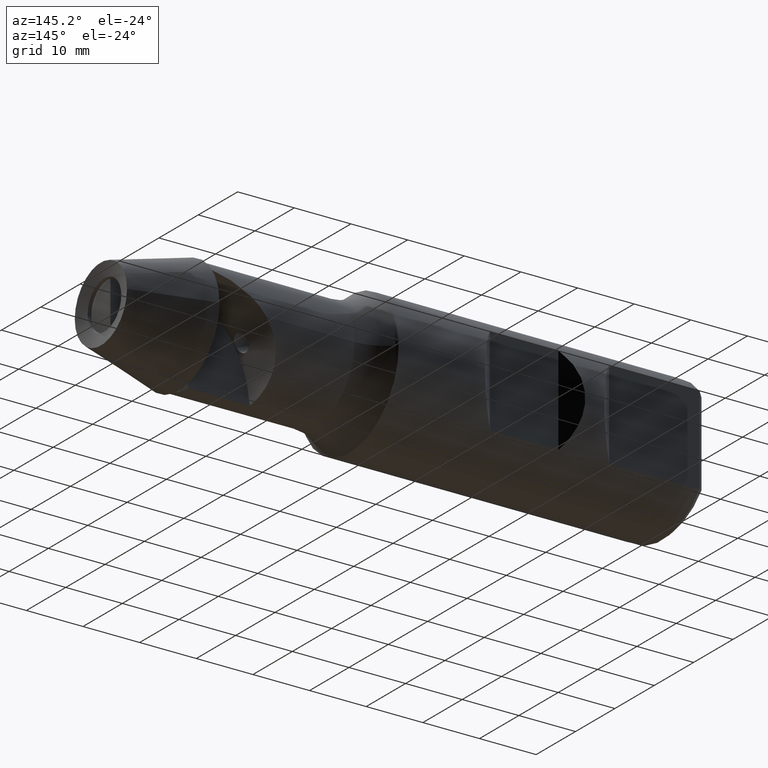
[diagram: clean part render]
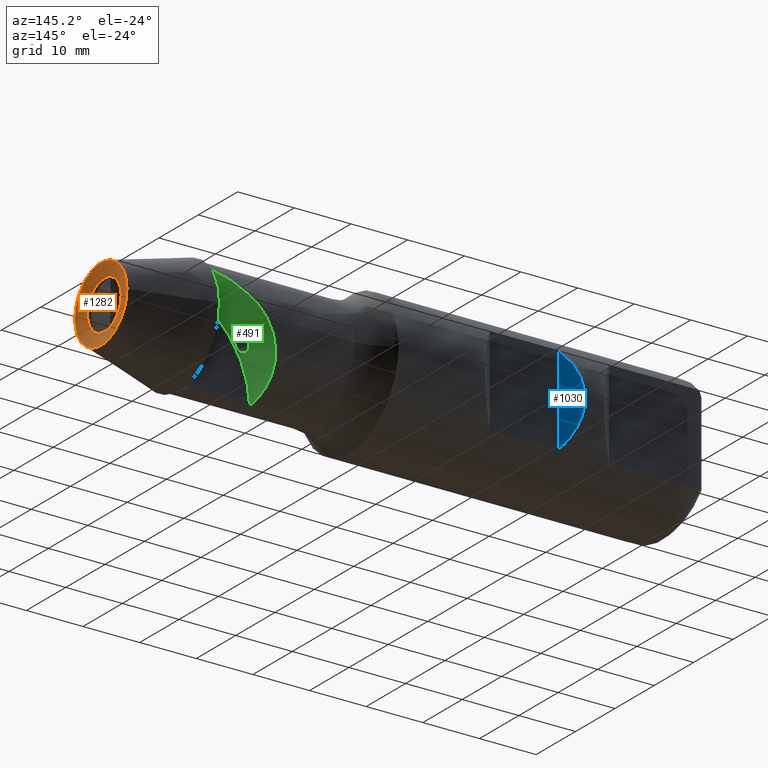
[diagram: same view with three faces highlighted in distinct colors, each labeled with its STEP entity id]
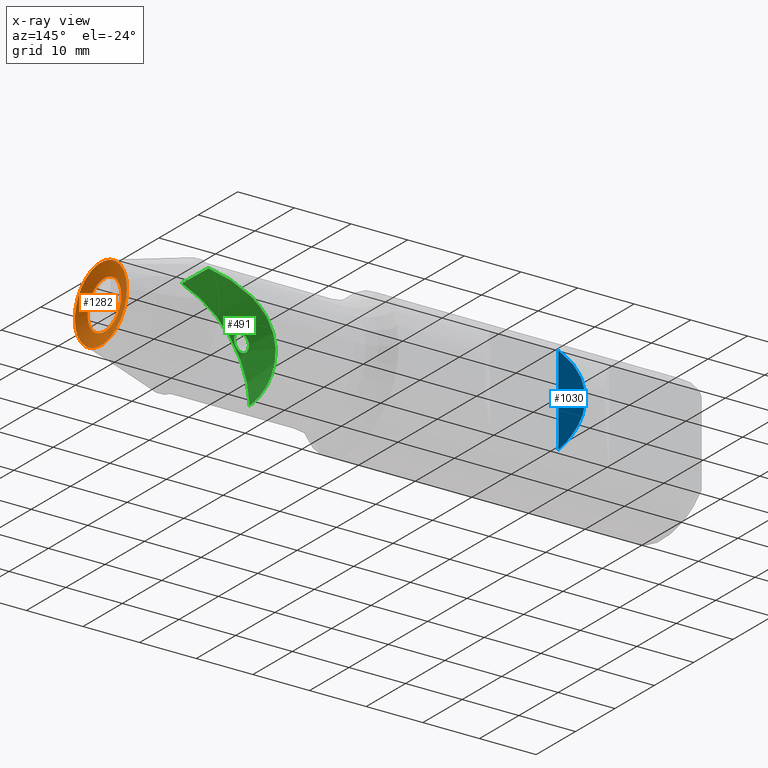
[diagram: x-ray of the same camera — body ghosted, the three highlighted faces saturated]
A machine part, auxiliary view with three faces highlighted in distinct colors.
The next image is the same camera in x-ray (body ghosted, the three faces saturated) — at least one of them is partly hidden behind the body in this view.
Their STEP definitions:

[orange] entity #1282 — the highlighted conical surface has half-angle 75.198 deg.
#22 = VERTEX_POINT ( 'NONE', #167 ) ;
#48 = DIRECTION ( 'NONE',  ( 0.9999940320235379800, 0.003454839693465523200, -0.0000000000000000000 ) ) ;
#61 = AXIS2_PLACEMENT_3D ( 'NONE', #63, #649, #1340 ) ;
#63 = CARTESIAN_POINT ( 'NONE',  ( -4.522801941976864800, -0.01562564892832777500, 0.0000000000000000000 ) ) ;
#167 = CARTESIAN_POINT ( 'NONE',  ( -4.545603883953736700, 6.584334962427025300, 0.0000000000000000000 ) ) ;
#187 = EDGE_CURVE ( 'NONE', #22, #22, #305, .T. ) ;
#305 = CIRCLE ( 'NONE', #61, 6.600000000000002300 ) ;
#344 = DIRECTION ( 'NONE',  ( 0.9999940320235379800, 0.003454839693465523200, -0.0000000000000000000 ) ) ;
#446 = EDGE_CURVE ( 'NONE', #475, #475, #1031, .T. ) ;
#475 = VERTEX_POINT ( 'NONE', #859 ) ;
#536 = CONICAL_SURFACE ( 'NONE', #805, 6.600000000000002300, 1.312451785562024400 ) ;
#572 = FACE_OUTER_BOUND ( 'NONE', #982, .T. ) ;
#636 = CARTESIAN_POINT ( 'NONE',  ( -5.142981305665594900, -0.01776828199825151700, 0.0000000000000000000 ) ) ;
#649 = DIRECTION ( 'NONE',  ( 0.9999940320235379800, 0.003454839693465523200, -0.0000000000000000000 ) ) ;
#670 = EDGE_LOOP ( 'NONE', ( #950 ) ) ;
#742 = DIRECTION ( 'NONE',  ( -0.003454839693465606900, 0.9999940320235378700, 0.0000000000000000000 ) ) ;
#747 = DIRECTION ( 'NONE',  ( -0.003454839693465546600, 0.9999940320235378700, 0.0000000000000000000 ) ) ;
#805 = AXIS2_PLACEMENT_3D ( 'NONE', #1220, #344, #747 ) ;
#859 = CARTESIAN_POINT ( 'NONE',  ( -5.157674882725570100, 4.235247971358978300, 0.0000000000000000000 ) ) ;
#950 = ORIENTED_EDGE ( 'NONE', *, *, #446, .F. ) ;
#982 = EDGE_LOOP ( 'NONE', ( #1078 ) ) ;
#1031 = CIRCLE ( 'NONE', #1187, 4.253041635409602800 ) ;
#1078 = ORIENTED_EDGE ( 'NONE', *, *, #187, .T. ) ;
#1187 = AXIS2_PLACEMENT_3D ( 'NONE', #636, #48, #742 ) ;
#1220 = CARTESIAN_POINT ( 'NONE',  ( -4.522801941976864800, -0.01562564892832777500, 0.0000000000000000000 ) ) ;
#1282 = ADVANCED_FACE ( 'NONE', ( #1334, #572 ), #536, .F. ) ;
#1334 = FACE_BOUND ( 'NONE', #670, .T. ) ;
#1340 = DIRECTION ( 'NONE',  ( -0.003454839693465546600, 0.9999940320235378700, 0.0000000000000000000 ) ) ;

[blue] entity #1030 — the highlighted planar face has unit normal (0.7071, 0.7071, 0).
#3 = ORIENTED_EDGE ( 'NONE', *, *, #1176, .F. ) ;
#9 = CARTESIAN_POINT ( 'NONE',  ( -78.54999999999999700, 9.699999999999990400, 10.00000000000000000 ) ) ;
#165 = DIRECTION ( 'NONE',  ( 0.0000000000000000000, 0.0000000000000000000, -1.000000000000000000 ) ) ;
#166 = EDGE_CURVE ( 'NONE', #782, #199, #1016, .T. ) ;
#169 =( BOUNDED_CURVE ( )  B_SPLINE_CURVE ( 3, ( #334, #519, #527, #1320 ),
 .UNSPECIFIED., .F., .F. ) 
 B_SPLINE_CURVE_WITH_KNOTS ( ( 4, 4 ),
 ( 2.459095336313819900, 3.824089970865767200 ),
 .UNSPECIFIED. ) 
 CURVE ( )  GEOMETRIC_REPRESENTATION_ITEM ( )  RATIONAL_B_SPLINE_CURVE ( ( 1.000000000000000000, 0.8506666666666659000, 0.8506666666666659000, 1.000000000000000000 ) ) 
 REPRESENTATION_ITEM ( '' )  );
#195 = VECTOR ( 'NONE', #165, 1000.000000000000000 ) ;
#199 = VERTEX_POINT ( 'NONE', #454 ) ;
#304 = PLANE ( 'NONE',  #1180 ) ;
#334 = CARTESIAN_POINT ( 'NONE',  ( -78.54999999999999700, 9.699999999999979700, 7.884161337770830600 ) ) ;
#454 = CARTESIAN_POINT ( 'NONE',  ( -78.54999999999999700, 9.699999999999979700, -7.884161337770830600 ) ) ;
#478 = EDGE_LOOP ( 'NONE', ( #3, #1284 ) ) ;
#494 = DIRECTION ( 'NONE',  ( 0.7071067811865493500, 0.7071067811865456900, 0.0000000000000000000 ) ) ;
#519 = CARTESIAN_POINT ( 'NONE',  ( -82.44717868338560200, 13.59717868338558400, 3.089404912919603500 ) ) ;
#527 = CARTESIAN_POINT ( 'NONE',  ( -82.44717868338557300, 13.59717868338558100, -3.089404912919613700 ) ) ;
#655 = CARTESIAN_POINT ( 'NONE',  ( -78.54999999999999700, 9.699999999999990400, 10.00000000000000000 ) ) ;
#686 = FACE_OUTER_BOUND ( 'NONE', #478, .T. ) ;
#782 = VERTEX_POINT ( 'NONE', #1231 ) ;
#1016 = LINE ( 'NONE', #655, #195 ) ;
#1030 = ADVANCED_FACE ( 'NONE', ( #686 ), #304, .T. ) ;
#1176 = EDGE_CURVE ( 'NONE', #782, #199, #169, .T. ) ;
#1180 = AXIS2_PLACEMENT_3D ( 'NONE', #9, #494, #1290 ) ;
#1231 = CARTESIAN_POINT ( 'NONE',  ( -78.54999999999999700, 9.699999999999979700, 7.884161337770830600 ) ) ;
#1284 = ORIENTED_EDGE ( 'NONE', *, *, #166, .T. ) ;
#1290 = DIRECTION ( 'NONE',  ( -0.7071067811865456900, 0.7071067811865493500, 0.0000000000000000000 ) ) ;
#1320 = CARTESIAN_POINT ( 'NONE',  ( -78.54999999999999700, 9.699999999999979700, -7.884161337770830600 ) ) ;

[green] entity #491 — the highlighted cylindrical surface (partial cylindrical patch) has radius 18 mm, axis along (0, -1, 0).
#25 = CARTESIAN_POINT ( 'NONE',  ( -26.87066310689284200, 9.859981000513276000, 0.1197241372224438800 ) ) ;
#28 = CARTESIAN_POINT ( 'NONE',  ( -30.08256771448526800, 6.302394600600335300, -7.589893469363744300 ) ) ;
#31 = AXIS2_PLACEMENT_3D ( 'NONE', #1081, #442, #953 ) ;
#47 = VERTEX_POINT ( 'NONE', #470 ) ;
#73 = DIRECTION ( 'NONE',  ( 0.0000000000000000000, 0.0000000000000000000, 1.000000000000000000 ) ) ;
#96 = ORIENTED_EDGE ( 'NONE', *, *, #464, .T. ) ;
#118 = CARTESIAN_POINT ( 'NONE',  ( -27.78616522961914700, 9.780134779478338200, -1.268525801172081200 ) ) ;
#122 = CARTESIAN_POINT ( 'NONE',  ( -30.21044031783524300, 4.928951206806716300, -8.546140188721658100 ) ) ;
#176 = ORIENTED_EDGE ( 'NONE', *, *, #853, .F. ) ;
#211 = CARTESIAN_POINT ( 'NONE',  ( -28.56330939852654500, 9.480109853074459600, -2.722685981647681200 ) ) ;
#218 = CARTESIAN_POINT ( 'NONE',  ( -30.27158990250889700, 3.419720739016271600, -9.254092987939250400 ) ) ;
#238 = CARTESIAN_POINT ( 'NONE',  ( -18.29108054973579900, 0.6899999999999927300, 6.497944392056779400 ) ) ;
#299 = B_SPLINE_CURVE_WITH_KNOTS ( 'NONE', 3,
 ( #603, #1295, #916, #316, #1037, #408, #1178, #507, #1299, #607, #25, #712, #118, #803, #211, #920, #319, #1046, #411, #1182, #510, #1303, #610, #28, #717, #122, #804, #218, #928, #323, #1051, #416 ),
 .UNSPECIFIED., .F., .F.,
 ( 4, 2, 2, 2, 2, 2, 2, 2, 2, 2, 2, 2, 2, 2, 2, 4 ),
 ( 8.918305444435983100E-005, 0.003394149205724749300, 0.005046632281364941400, 0.006699115357005134100, 0.01000408150828550900, 0.01165656458392569900, 0.01330904765956588900, 0.01496153073520608100, 0.01661401381084626600, 0.01744025534866636500, 0.01826649688648646100, 0.01991897996212665600, 0.02157146303776685500, 0.02322394611340705700, 0.02487642918904725200, 0.02652891226468744700 ),
 .UNSPECIFIED. ) ;
#316 = CARTESIAN_POINT ( 'NONE',  ( -21.69466936296822400, 8.555838342222253700, 4.890206921840177600 ) ) ;
#319 = CARTESIAN_POINT ( 'NONE',  ( -29.17699178177218400, 8.939473744182851800, -4.169996366118220400 ) ) ;
#323 = CARTESIAN_POINT ( 'NONE',  ( -30.29557541464513900, 1.801601928082108300, -9.699855916571705100 ) ) ;
#349 = FACE_OUTER_BOUND ( 'NONE', #799, .T. ) ;
#362 = CARTESIAN_POINT ( 'NONE',  ( -28.44393900244888600, 2.354649618978178300, -2.494980023740172900 ) ) ;
#408 = CARTESIAN_POINT ( 'NONE',  ( -23.01775545169547900, 9.007587694097026100, 4.000020101083421800 ) ) ;
#411 = CARTESIAN_POINT ( 'NONE',  ( -29.49147020667740500, 8.430019606566567300, -5.102040296014946500 ) ) ;
#416 = CARTESIAN_POINT ( 'NONE',  ( -30.30010790437034300, 0.6899999999999905100, -9.825802766186585700 ) ) ;
#442 = DIRECTION ( 'NONE',  ( 0.0000000000000000000, -1.000000000000000000, 0.0000000000000000000 ) ) ;
#452 = B_SPLINE_CURVE_WITH_KNOTS ( 'NONE', 3,
 ( #1005, #995, #1009, #1047, #1039, #1052, #1049, #1225, #1223, #1204, #1200, #1028, #1025, #1273, #1241, #993, #991, #900, #1118, #1111, #1128, #1278, #1155, #1197, #1173, #1142, #1148, #1139, #1281, #945, #975, #1185, #933, #938, #926, #1066, #1267, #1164, #1222, #1179, #1134, #947, #1261, #967, #978, #1218, #913, #911 ),
 .UNSPECIFIED., .T., .F.,
 ( 4, 2, 2, 2, 2, 2, 2, 2, 2, 2, 2, 2, 2, 2, 2, 2, 2, 2, 2, 2, 2, 2, 2, 4 ),
 ( 0.0000000000000000000, 0.0002960899048584521900, 0.0005921798097169043900, 0.0008882697145753565800, 0.001184359619433808800, 0.001776539429150712300, 0.002368719238867615800, 0.002664809143726064700, 0.002960899048584514400, 0.003553078858301417200, 0.004145258668018321000, 0.004441348572876771500, 0.004737438477735222100, 0.005329618287452123200, 0.005921798097169026100, 0.006217888002027476700, 0.006513977906885928100, 0.007106157716602835300, 0.007402247621461292000, 0.007698337526319747700, 0.007994427431178204400, 0.008290517336036661000, 0.008882697145753572600, 0.009474876955470482400 ),
 .UNSPECIFIED. ) ;
#464 = EDGE_CURVE ( 'NONE', #47, #1359, #1316, .T. ) ;
#470 = CARTESIAN_POINT ( 'NONE',  ( -18.35681977107357800, 7.423032291706191700, 6.474649920751471800 ) ) ;
#473 = EDGE_LOOP ( 'NONE', ( #665 ) ) ;
#491 = ADVANCED_FACE ( 'NONE', ( #1327, #349 ), #896, .F. ) ;
#507 = CARTESIAN_POINT ( 'NONE',  ( -24.69990283429390800, 9.522929447429739000, 2.624415140954786500 ) ) ;
#510 = CARTESIAN_POINT ( 'NONE',  ( -29.68989541261055400, 7.978123833609239500, -5.783316150048586100 ) ) ;
#533 = CARTESIAN_POINT ( 'NONE',  ( -18.32766852260407500, 5.178771893388152100, 6.485043178289882500 ) ) ;
#603 = CARTESIAN_POINT ( 'NONE',  ( -18.35681977107357800, 7.423032291706191700, 6.474649920751471800 ) ) ;
#607 = CARTESIAN_POINT ( 'NONE',  ( -26.53159576583619400, 9.842841628093941300, 0.5703649341496602700 ) ) ;
#610 = CARTESIAN_POINT ( 'NONE',  ( -29.94402360475411500, 7.110272170580535600, -6.838910018287608100 ) ) ;
#647 = VERTEX_POINT ( 'NONE', #362 ) ;
#658 = DIRECTION ( 'NONE',  ( 0.0000000000000000000, 1.000000000000000000, 0.0000000000000000000 ) ) ;
#665 = ORIENTED_EDGE ( 'NONE', *, *, #705, .F. ) ;
#705 = EDGE_CURVE ( 'NONE', #647, #647, #452, .T. ) ;
#712 = CARTESIAN_POINT ( 'NONE',  ( -27.49680894566106200, 9.828319847688890200, -0.7985537997161472600 ) ) ;
#717 = CARTESIAN_POINT ( 'NONE',  ( -30.13420741682675800, 5.858564905880350600, -7.937776097116371300 ) ) ;
#719 = CIRCLE ( 'NONE', #1214, 18.00000000000000000 ) ;
#799 = EDGE_LOOP ( 'NONE', ( #1100, #96, #176 ) ) ;
#803 = CARTESIAN_POINT ( 'NONE',  ( -28.31848415680313000, 9.607063651506695800, -2.228120734812172500 ) ) ;
#804 = CARTESIAN_POINT ( 'NONE',  ( -30.23571191704422000, 4.441153656492188500, -8.809590294770265100 ) ) ;
#837 = CARTESIAN_POINT ( 'NONE',  ( -18.30205693674826200, 2.934470301636690900, 6.494078865077948000 ) ) ;
#853 = EDGE_CURVE ( 'NONE', #935, #1359, #719, .T. ) ;
#896 = CYLINDRICAL_SURFACE ( 'NONE', #31, 18.00000000000000000 ) ;
#900 = CARTESIAN_POINT ( 'NONE',  ( -27.30089718688585500, 3.665502073472227000, -0.5117047287882868800 ) ) ;
#911 = CARTESIAN_POINT ( 'NONE',  ( -28.44393900244887500, 2.354649618978177800, -2.494980023740172900 ) ) ;
#913 = CARTESIAN_POINT ( 'NONE',  ( -28.44393900244886800, 2.154411622472972800, -2.494980023740172500 ) ) ;
#916 = CARTESIAN_POINT ( 'NONE',  ( -20.32166094039233100, 8.074811665566493000, 5.674142267536793400 ) ) ;
#920 = CARTESIAN_POINT ( 'NONE',  ( -28.99163414080726800, 9.146107719726586500, -3.692453839952235300 ) ) ;
#926 = CARTESIAN_POINT ( 'NONE',  ( -27.60532256112885800, 0.8559225024690011500, -0.9850387359314569700 ) ) ;
#928 = CARTESIAN_POINT ( 'NONE',  ( -30.28211846710445300, 2.884025314271153400, -9.434795826946304600 ) ) ;
#933 = CARTESIAN_POINT ( 'NONE',  ( -27.35007323439118600, 1.007450004810005200, -0.5873332292777785300 ) ) ;
#935 = VERTEX_POINT ( 'NONE', #1126 ) ;
#938 = CARTESIAN_POINT ( 'NONE',  ( -27.50091699754762300, 0.8951697412634802600, -0.8192127546733127800 ) ) ;
#945 = CARTESIAN_POINT ( 'NONE',  ( -27.16457599344690600, 1.223309276645225800, -0.3111225395510050500 ) ) ;
#947 = CARTESIAN_POINT ( 'NONE',  ( -28.16872045288213800, 1.153798270770810100, -1.961120596357517300 ) ) ;
#953 = DIRECTION ( 'NONE',  ( 0.0000000000000000000, 0.0000000000000000000, -1.000000000000000000 ) ) ;
#967 = CARTESIAN_POINT ( 'NONE',  ( -28.30482513642892100, 1.424022394053922900, -2.218668657309176500 ) ) ;
#975 = CARTESIAN_POINT ( 'NONE',  ( -27.20913058278478400, 1.160669195708146100, -0.3764166830084520500 ) ) ;
#976 = CARTESIAN_POINT ( 'NONE',  ( -18.29108054973579900, 0.6899999999999927300, 6.497944392056779400 ) ) ;
#978 = CARTESIAN_POINT ( 'NONE',  ( -28.35675378723248800, 1.591878456333757600, -2.320846228650759600 ) ) ;
#991 = CARTESIAN_POINT ( 'NONE',  ( -27.45158363084761900, 3.777277903581483200, -0.7433940791544456600 ) ) ;
#993 = CARTESIAN_POINT ( 'NONE',  ( -27.50256803448420600, 3.805475119499305100, -0.8230821579963449900 ) ) ;
#995 = CARTESIAN_POINT ( 'NONE',  ( -28.44393900244888200, 2.454768617230779400, -2.494980023740172900 ) ) ;
#1005 = CARTESIAN_POINT ( 'NONE',  ( -28.44393900244887500, 2.354649618978177800, -2.494980023740172900 ) ) ;
#1009 = CARTESIAN_POINT ( 'NONE',  ( -28.43951727317681100, 2.553186608916870900, -2.486029199718483800 ) ) ;
#1025 = CARTESIAN_POINT ( 'NONE',  ( -27.81224734057961700, 3.855655697376076500, -1.326776775771324900 ) ) ;
#1028 = CARTESIAN_POINT ( 'NONE',  ( -27.91261993759160400, 3.818116407314235100, -1.499227899290162400 ) ) ;
#1037 = CARTESIAN_POINT ( 'NONE',  ( -22.14206419014490000, 8.712130400931192400, 4.608207976327690900 ) ) ;
#1039 = CARTESIAN_POINT ( 'NONE',  ( -28.40889347131981100, 2.842946869374116200, -2.424473337385917700 ) ) ;
#1046 = CARTESIAN_POINT ( 'NONE',  ( -29.41754454969038700, 8.565420187063104200, -4.870956492121968600 ) ) ;
#1047 = CARTESIAN_POINT ( 'NONE',  ( -28.42210658261844400, 2.746759553648270700, -2.450999536116401900 ) ) ;
#1049 = CARTESIAN_POINT ( 'NONE',  ( -28.35287708273592600, 3.112534343269477400, -2.313398802681176900 ) ) ;
#1051 = CARTESIAN_POINT ( 'NONE',  ( -30.29867582191807400, 1.250742863931504400, -9.786425568687343800 ) ) ;
#1052 = CARTESIAN_POINT ( 'NONE',  ( -28.37420475499498100, 3.025859430983659900, -2.355526623360665500 ) ) ;
#1066 = CARTESIAN_POINT ( 'NONE',  ( -27.76072895568321600, 0.8540583133660691900, -1.241668183862488800 ) ) ;
#1067 = EDGE_CURVE ( 'NONE', #47, #935, #299, .T. ) ;
#1081 = CARTESIAN_POINT ( 'NONE',  ( -12.31199999999999900, 12.59999999999999300, -10.48000000000000000 ) ) ;
#1100 = ORIENTED_EDGE ( 'NONE', *, *, #1067, .F. ) ;
#1111 = CARTESIAN_POINT ( 'NONE',  ( -27.04302216671103700, 3.280108372630182100, -0.1350609484845048900 ) ) ;
#1118 = CARTESIAN_POINT ( 'NONE',  ( -27.20680905647840600, 3.557286755503033000, -0.3723078189553477000 ) ) ;
#1126 = CARTESIAN_POINT ( 'NONE',  ( -30.30010790437034300, 0.6899999999999905100, -9.825802766186585700 ) ) ;
#1128 = CARTESIAN_POINT ( 'NONE',  ( -26.97645618379206700, 3.116258001985630100, -0.04160837185646446700 ) ) ;
#1134 = CARTESIAN_POINT ( 'NONE',  ( -28.08948011201448500, 1.046216764056024700, -1.815243158077499000 ) ) ;
#1139 = CARTESIAN_POINT ( 'NONE',  ( -26.97553293917895400, 1.596046679029576000, -0.04031765940035583800 ) ) ;
#1142 = CARTESIAN_POINT ( 'NONE',  ( -26.85920459396816200, 2.157697501308980700, 0.1208885720882794800 ) ) ;
#1148 = CARTESIAN_POINT ( 'NONE',  ( -26.88389439116410500, 1.958588988120957700, 0.08721625991322580500 ) ) ;
#1155 = CARTESIAN_POINT ( 'NONE',  ( -26.88941654739582200, 2.748495024955388600, 0.07932480385079372600 ) ) ;
#1164 = CARTESIAN_POINT ( 'NONE',  ( -27.90874668222440700, 0.8993451401533501000, -1.493849708539201700 ) ) ;
#1173 = CARTESIAN_POINT ( 'NONE',  ( -26.85931841202023300, 2.454533268338865400, 0.1207323814653077600 ) ) ;
#1178 = CARTESIAN_POINT ( 'NONE',  ( -23.44729671070401600, 9.147178907490966200, 3.672795673264790400 ) ) ;
#1179 = CARTESIAN_POINT ( 'NONE',  ( -28.04714440244006100, 1.000885561853660700, -1.738504070554496300 ) ) ;
#1182 = CARTESIAN_POINT ( 'NONE',  ( -29.62766030779619100, 8.136519859622589800, -5.558155298588213000 ) ) ;
#1185 = CARTESIAN_POINT ( 'NONE',  ( -27.30171558317253400, 1.053097935483431100, -0.5142926904546228900 ) ) ;
#1197 = CARTESIAN_POINT ( 'NONE',  ( -26.86552123923970800, 2.555011299598863900, 0.1122345635142977800 ) ) ;
#1200 = CARTESIAN_POINT ( 'NONE',  ( -28.09230318158522300, 3.671467775196373100, -1.818842949159740900 ) ) ;
#1204 = CARTESIAN_POINT ( 'NONE',  ( -28.17335580936277900, 3.560794736690358100, -1.968985348740674300 ) ) ;
#1214 = AXIS2_PLACEMENT_3D ( 'NONE', #1346, #658, #73 ) ;
#1218 = CARTESIAN_POINT ( 'NONE',  ( -28.42588659902871800, 1.955502562548994800, -2.458243768907158800 ) ) ;
#1222 = CARTESIAN_POINT ( 'NONE',  ( -27.95666418498892000, 0.9272202153568891400, -1.577584429545080700 ) ) ;
#1223 = CARTESIAN_POINT ( 'NONE',  ( -28.27213200798892600, 3.353634733290690000, -2.156588384931504600 ) ) ;
#1225 = CARTESIAN_POINT ( 'NONE',  ( -28.30194407979403700, 3.276383460290968100, -2.214118254865296500 ) ) ;
#1241 = CARTESIAN_POINT ( 'NONE',  ( -27.60581950048930700, 3.843963333378842300, -0.9874500525962499600 ) ) ;
#1261 = CARTESIAN_POINT ( 'NONE',  ( -28.20586089108477200, 1.216781322145642500, -2.030727911566855100 ) ) ;
#1267 = CARTESIAN_POINT ( 'NONE',  ( -27.81101846050619400, 0.8629785864759028600, -1.326321455770527000 ) ) ;
#1273 = CARTESIAN_POINT ( 'NONE',  ( -27.65850635865059500, 3.854115091605658300, -1.072846693243331800 ) ) ;
#1278 = CARTESIAN_POINT ( 'NONE',  ( -26.90701437576005600, 2.842496885759373500, 0.05504290966919050300 ) ) ;
#1281 = CARTESIAN_POINT ( 'NONE',  ( -27.04305355868988400, 1.429492654495475100, -0.1351273164923184900 ) ) ;
#1295 = CARTESIAN_POINT ( 'NONE',  ( -19.36603656530347800, 7.736876371214933100, 6.114835140760432900 ) ) ;
#1299 = CARTESIAN_POINT ( 'NONE',  ( -25.47088441385139000, 9.712397993488506700, 1.851814005635333600 ) ) ;
#1303 = CARTESIAN_POINT ( 'NONE',  ( -29.85699938447697800, 7.478643426050381600, -6.433600460804201200 ) ) ;
#1316 = B_SPLINE_CURVE_WITH_KNOTS ( 'NONE', 3,
 ( #1326, #533, #837, #238 ),
 .UNSPECIFIED., .F., .F.,
 ( 4, 4 ),
 ( 0.001071162311860505800, 0.007804554940313365400 ),
 .UNSPECIFIED. ) ;
#1326 = CARTESIAN_POINT ( 'NONE',  ( -18.35681977107357800, 7.423032291706191700, 6.474649920751471800 ) ) ;
#1327 = FACE_BOUND ( 'NONE', #473, .T. ) ;
#1346 = CARTESIAN_POINT ( 'NONE',  ( -12.31199999999999900, 0.6899999999999927300, -10.48000000000000000 ) ) ;
#1359 = VERTEX_POINT ( 'NONE', #976 ) ;